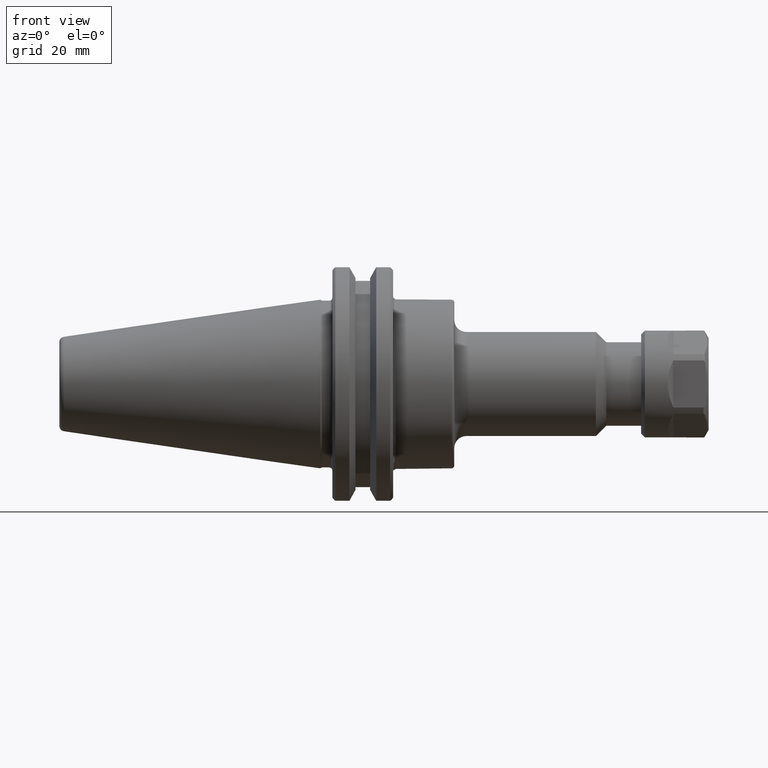
[diagram: clean part render]
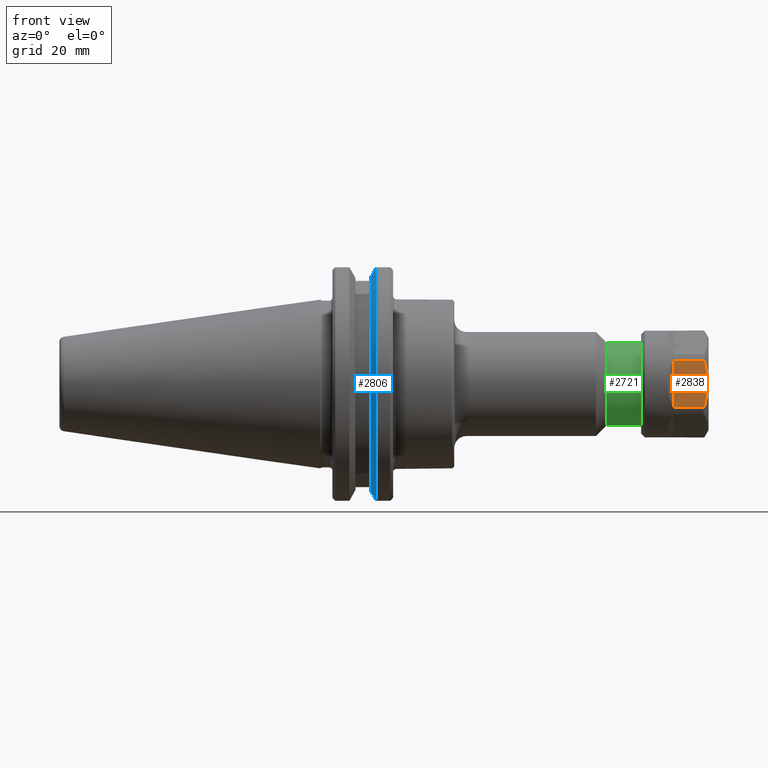
[diagram: same view with three faces highlighted in distinct colors, each labeled with its STEP entity id]
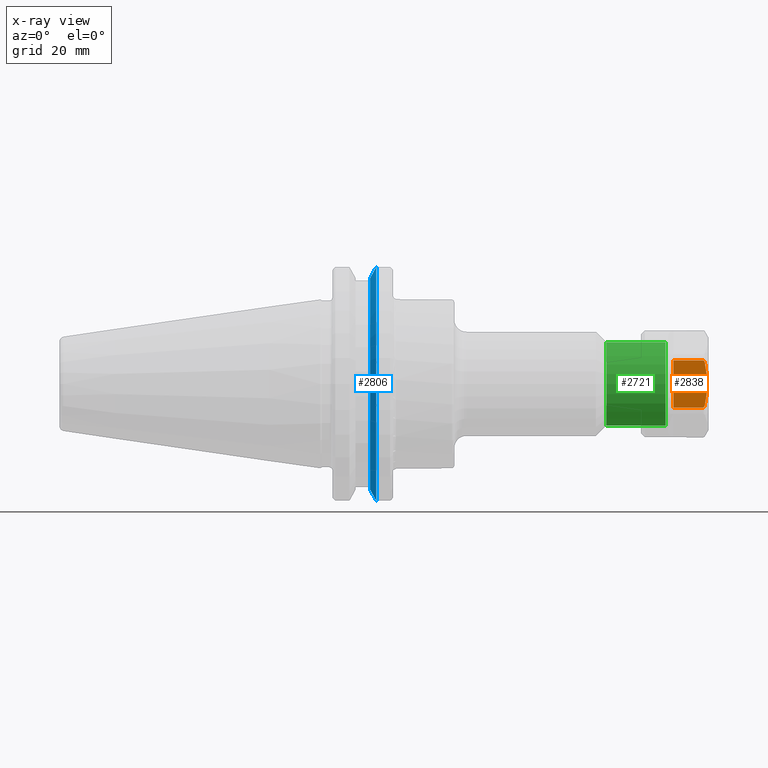
[diagram: x-ray of the same camera — body ghosted, the three highlighted faces saturated]
A machine part, front view with three faces highlighted in distinct colors.
The next image is the same camera in x-ray (body ghosted, the three faces saturated) — at least one of them is partly hidden behind the body in this view.
Their STEP definitions:

[orange] entity #2838 — the highlighted planar face has unit normal (0, 1, -0).
#84=(
BOUNDED_CURVE()
B_SPLINE_CURVE(2,(#6018,#6019,#6020),.UNSPECIFIED.,.F.,.F.)
B_SPLINE_CURVE_WITH_KNOTS((3,3),(0.,1.12149805765919),.UNSPECIFIED.)
CURVE()
GEOMETRIC_REPRESENTATION_ITEM()
RATIONAL_B_SPLINE_CURVE((1.,1.09361329833771,1.))
REPRESENTATION_ITEM('')
);
#193=LINE('',#5826,#333);
#194=LINE('',#5830,#334);
#206=LINE('',#6002,#346);
#333=VECTOR('',#3768,7.82180985847815);
#334=VECTOR('',#3771,7.82180985847815);
#346=VECTOR('',#3837,12.3157900274404);
#495=PLANE('',#3136);
#780=FACE_OUTER_BOUND('',#1016,.T.);
#1016=EDGE_LOOP('',(#2462,#2463,#2464,#2465,#2466,#2467));
#1230=B_SPLINE_CURVE_WITH_KNOTS('',3,(#6005,#6006,#6007,#6008,#6009,#6010,
#6011,#6012,#6013,#6014,#6015,#6016),.UNSPECIFIED.,.F.,.F.,(4,2,2,2,2,4),
(-0.0737918488788988,-0.0724859676393659,-0.0354928490398611,-0.0136392047461638,
-0.00635802033410937,0.),.UNSPECIFIED.);
#1231=B_SPLINE_CURVE_WITH_KNOTS('',3,(#6021,#6022,#6023,#6024,#6025,#6026,
#6027,#6028,#6029,#6030,#6031,#6032),.UNSPECIFIED.,.F.,.F.,(4,2,2,2,2,4),
(0.,0.0063580203341094,0.0136392047461638,0.0354928490398611,0.0724859676393658,
0.0737918488788989),.UNSPECIFIED.);
#1435=VERTEX_POINT('',#5823);
#1436=VERTEX_POINT('',#5825);
#1437=VERTEX_POINT('',#5827);
#1438=VERTEX_POINT('',#5829);
#1464=VERTEX_POINT('',#6004);
#1465=VERTEX_POINT('',#6017);
#1771=EDGE_CURVE('',#1435,#1436,#193,.T.);
#1773=EDGE_CURVE('',#1437,#1438,#194,.T.);
#1811=EDGE_CURVE('',#1436,#1437,#206,.T.);
#1812=EDGE_CURVE('',#1464,#1435,#1230,.T.);
#1813=EDGE_CURVE('',#1465,#1464,#84,.T.);
#1814=EDGE_CURVE('',#1438,#1465,#1231,.T.);
#2462=ORIENTED_EDGE('',*,*,#1771,.F.);
#2463=ORIENTED_EDGE('',*,*,#1812,.F.);
#2464=ORIENTED_EDGE('',*,*,#1813,.F.);
#2465=ORIENTED_EDGE('',*,*,#1814,.F.);
#2466=ORIENTED_EDGE('',*,*,#1773,.F.);
#2467=ORIENTED_EDGE('',*,*,#1811,.F.);
#2838=ADVANCED_FACE('',(#780),#495,.F.);
#3136=AXIS2_PLACEMENT_3D('',#6003,#3838,#3839);
#3768=DIRECTION('',(1.,0.,0.));
#3771=DIRECTION('',(-1.,0.,0.));
#3837=DIRECTION('',(0.,-0.5,-0.866025403784439));
#3838=DIRECTION('center_axis',(2.48288722939764E-16,0.866025403784439,-0.5));
#3839=DIRECTION('ref_axis',(-1.,1.77635683940025E-16,-8.88178419700125E-17));
#5823=CARTESIAN_POINT('',(1.12119014152185,-7.80958989492165,11.6193935157192));
#5825=CARTESIAN_POINT('',(8.943,-7.80958989492165,11.6193935157192));
#5826=CARTESIAN_POINT('',(8.74559507076093,-7.80958989492165,11.6193935157192));
#5827=CARTESIAN_POINT('',(8.943,-13.9674849086418,0.95360648428079));
#5829=CARTESIAN_POINT('',(1.12119014152185,-13.9674849086418,0.953606484280786));
#5830=CARTESIAN_POINT('',(8.74559507076093,-13.9674849086418,0.95360648428079));
#6002=CARTESIAN_POINT('',(8.943,-10.8885374017817,6.2865));
#6003=CARTESIAN_POINT('Origin',(0.,-10.8885374017817,6.2865));
#6004=CARTESIAN_POINT('',(0.688177439629632,-8.10545588123658,11.1069385951903));
#6005=CARTESIAN_POINT('Ctrl Pts',(0.68817743962963,-8.10545588123658,11.1069385951903));
#6006=CARTESIAN_POINT('Ctrl Pts',(0.689175633962202,-8.10332041599802,11.1106373294813));
#6007=CARTESIAN_POINT('Ctrl Pts',(0.690184142195285,-8.10119448053268,11.1143195577208));
#6008=CARTESIAN_POINT('Ctrl Pts',(0.720058085522022,-8.03913508549274,11.221809583017));
#6009=CARTESIAN_POINT('Ctrl Pts',(0.767891610325394,-7.96912114565866,11.3430772840477));
#6010=CARTESIAN_POINT('Ctrl Pts',(0.868941133795054,-7.88505848804876,11.4886780780473));
#6011=CARTESIAN_POINT('Ctrl Pts',(0.923718976070076,-7.85099715990987,11.5476740289572));
#6012=CARTESIAN_POINT('Ctrl Pts',(1.00521872017035,-7.8245901165651,11.593412369708));
#6013=CARTESIAN_POINT('Ctrl Pts',(1.03139506563093,-7.81820557896621,11.6044707132121));
#6014=CARTESIAN_POINT('Ctrl Pts',(1.07487052984685,-7.81155612888104,11.615987898602));
#6015=CARTESIAN_POINT('Ctrl Pts',(1.09999674040815,-7.80958989492165,11.6193935157192));
#6016=CARTESIAN_POINT('Ctrl Pts',(1.12119014152185,-7.80958989492165,11.6193935157192));
#6017=CARTESIAN_POINT('',(0.688177439629632,-13.6716189223269,1.46606140480972));
#6018=CARTESIAN_POINT('Ctrl Pts',(0.688177439629634,-13.6716189223269,1.46606140480972));
#6019=CARTESIAN_POINT('Ctrl Pts',(-0.612736361601571,-10.8885374017817,
6.2865));
#6020=CARTESIAN_POINT('Ctrl Pts',(0.688177439629634,-8.10545588123657,11.1069385951903));
#6021=CARTESIAN_POINT('Ctrl Pts',(1.12119014152185,-13.9674849086418,0.953606484280786));
#6022=CARTESIAN_POINT('Ctrl Pts',(1.09999674040815,-13.9674849086418,0.953606484280786));
#6023=CARTESIAN_POINT('Ctrl Pts',(1.07487052984685,-13.9655186746825,0.957012101398023));
#6024=CARTESIAN_POINT('Ctrl Pts',(1.03139506563093,-13.9588692245973,0.968529286787934));
#6025=CARTESIAN_POINT('Ctrl Pts',(1.00521872017035,-13.9524846869984,0.979587630292033));
#6026=CARTESIAN_POINT('Ctrl Pts',(0.923718976070075,-13.9260776436536,1.02532597104285));
#6027=CARTESIAN_POINT('Ctrl Pts',(0.868941133795054,-13.8920163155147,1.08432192195268));
#6028=CARTESIAN_POINT('Ctrl Pts',(0.767891610325395,-13.8079536579048,1.22992271595231));
#6029=CARTESIAN_POINT('Ctrl Pts',(0.720058085522022,-13.7379397180708,1.351190416983));
#6030=CARTESIAN_POINT('Ctrl Pts',(0.690184142195285,-13.6758803230308,1.45868044227917));
#6031=CARTESIAN_POINT('Ctrl Pts',(0.689175633962204,-13.6737543875655,1.46236267051874));
#6032=CARTESIAN_POINT('Ctrl Pts',(0.688177439629632,-13.6716189223269,1.46606140480972));

[blue] entity #2806 — the highlighted conical surface has half-angle 60 deg.
#57=(
BOUNDED_CURVE()
B_SPLINE_CURVE(2,(#4361,#4362,#4363),.UNSPECIFIED.,.F.,.F.)
B_SPLINE_CURVE_WITH_KNOTS((3,3),(0.,0.0246703220929329),.UNSPECIFIED.)
CURVE()
GEOMETRIC_REPRESENTATION_ITEM()
RATIONAL_B_SPLINE_CURVE((1.,1.00009739248592,1.00018150703382))
REPRESENTATION_ITEM('')
);
#79=(
BOUNDED_CURVE()
B_SPLINE_CURVE(2,(#5691,#5692,#5693),.UNSPECIFIED.,.F.,.F.)
B_SPLINE_CURVE_WITH_KNOTS((3,3),(0.337238883116999,0.36190920520917),
 .UNSPECIFIED.)
CURVE()
GEOMETRIC_REPRESENTATION_ITEM()
RATIONAL_B_SPLINE_CURVE((1.00018150703357,1.00009739248579,1.))
REPRESENTATION_ITEM('')
);
#396=CONICAL_SURFACE('',#3066,1.28590991798633,60.0000000000093);
#748=FACE_OUTER_BOUND('',#974,.T.);
#974=EDGE_LOOP('',(#2322,#2323,#2324,#2325,#2326,#2327));
#1104=CIRCLE('',#2958,1.14031983597204);
#1124=CIRCLE('',#3037,1.25);
#1190=B_SPLINE_CURVE_WITH_KNOTS('',3,(#4301,#4302,#4303,#4304,#4305,#4306,
#4307,#4308,#4309,#4310,#4311,#4312,#4313,#4314,#4315,#4316,#4317,#4318,
#4319,#4320,#4321),.UNSPECIFIED.,.F.,.F.,(4,1,2,2,2,1,2,2,2,2,1,4),(-0.298992862370475,
-0.258089161815496,-0.235846833355605,-0.213742413070091,-0.191774578107331,
-0.148243453984645,-0.0839390099489113,-0.0627638019609409,-0.0417163615476127,
-0.0207954892590791,0.,0.00870150624891346),.UNSPECIFIED.);
#1210=B_SPLINE_CURVE_WITH_KNOTS('',3,(#4977,#4978,#4979,#4980,#4981,#4982,
#4983,#4984,#4985,#4986,#4987,#4988,#4989,#4990,#4991,#4992,#4993,#4994,
#4995,#4996,#4997),.UNSPECIFIED.,.F.,.F.,(4,1,2,2,2,2,1,2,2,2,1,4),(-0.266790668115941,
-0.258089161815539,-0.237293672556656,-0.216372800268282,-0.195325359855078,
-0.174150151867187,-0.109845707831487,-0.0663145837086464,-0.0443467487457588,
-0.0222423284600852,0.,0.0409037005549357),.UNSPECIFIED.);
#1275=VERTEX_POINT('',#4293);
#1276=VERTEX_POINT('',#4300);
#1281=VERTEX_POINT('',#4359);
#1314=VERTEX_POINT('',#4940);
#1317=VERTEX_POINT('',#4970);
#1394=VERTEX_POINT('',#5683);
#1542=EDGE_CURVE('',#1275,#1276,#1190,.T.);
#1549=EDGE_CURVE('',#1281,#1275,#57,.T.);
#1592=EDGE_CURVE('',#1317,#1314,#1210,.T.);
#1593=EDGE_CURVE('',#1276,#1317,#1104,.T.);
#1719=EDGE_CURVE('',#1394,#1281,#1124,.T.);
#1722=EDGE_CURVE('',#1314,#1394,#79,.T.);
#2322=ORIENTED_EDGE('',*,*,#1542,.F.);
#2323=ORIENTED_EDGE('',*,*,#1549,.F.);
#2324=ORIENTED_EDGE('',*,*,#1719,.F.);
#2325=ORIENTED_EDGE('',*,*,#1722,.F.);
#2326=ORIENTED_EDGE('',*,*,#1592,.F.);
#2327=ORIENTED_EDGE('',*,*,#1593,.F.);
#2806=ADVANCED_FACE('',(#748),#396,.T.);
#2958=AXIS2_PLACEMENT_3D('',#4999,#3383,#3384);
#3037=AXIS2_PLACEMENT_3D('',#5685,#3601,#3602);
#3066=AXIS2_PLACEMENT_3D('',#5724,#3659,#3660);
#3383=DIRECTION('center_axis',(-1.,1.62451355720802E-13,0.));
#3384=DIRECTION('ref_axis',(1.62482077846342E-13,1.,0.));
#3601=DIRECTION('center_axis',(1.,1.16523256636576E-36,0.));
#3602=DIRECTION('ref_axis',(1.62451355720802E-13,1.,0.));
#3659=DIRECTION('center_axis',(1.,-1.62451355720802E-13,0.));
#3660=DIRECTION('ref_axis',(1.62482077846342E-13,1.,0.));
#4293=CARTESIAN_POINT('',(0.57260203633517,-0.333205733276611,-1.19655338963449));
#4300=CARTESIAN_POINT('',(0.513849999995934,-0.33314971543577,-1.09056893198432));
#4301=CARTESIAN_POINT('Ctrl Pts',(0.57260203633517,-0.33320573327661,-1.19655338963449));
#4302=CARTESIAN_POINT('Ctrl Pts',(0.569991755826316,-0.333202787555279,
-1.19186104554502));
#4303=CARTESIAN_POINT('Ctrl Pts',(0.565963363830547,-0.333198327842134,
-1.18461637151535));
#4304=CARTESIAN_POINT('Ctrl Pts',(0.561937029401505,-0.333194007937573,
-1.17737048354795));
#4305=CARTESIAN_POINT('Ctrl Pts',(0.559109898355234,-0.333191009292957,
-1.17228147157041));
#4306=CARTESIAN_POINT('Ctrl Pts',(0.557700985534991,-0.333189532056867,
-1.16974472683531));
#4307=CARTESIAN_POINT('Ctrl Pts',(0.554892387431461,-0.333186622042555,
-1.16468660436785));
#4308=CARTESIAN_POINT('Ctrl Pts',(0.553492698923776,-0.333185189046073,
-1.16216522853428));
#4309=CARTESIAN_POINT('Ctrl Pts',(0.549320194174905,-0.333180969510728,
-1.15464707005213));
#4310=CARTESIAN_POINT('Ctrl Pts',(0.542453265557145,-0.333174195711689,
-1.14226788346412));
#4311=CARTESIAN_POINT('Ctrl Pts',(0.535592919839709,-0.333167865320853,
-1.12988481558215));
#4312=CARTESIAN_POINT('Ctrl Pts',(0.530158115260262,-0.333163067656268,
-1.12006700355488));
#4313=CARTESIAN_POINT('Ctrl Pts',(0.528812061942786,-0.333161897149016,
-1.11763475532049));
#4314=CARTESIAN_POINT('Ctrl Pts',(0.52612862242322,-0.333159599647901,-1.11278461344108));
#4315=CARTESIAN_POINT('Ctrl Pts',(0.524791232945066,-0.333158472434753,
-1.1103667217295));
#4316=CARTESIAN_POINT('Ctrl Pts',(0.522125045147074,-0.333156261404245,
-1.10554515500631));
#4317=CARTESIAN_POINT('Ctrl Pts',(0.520796243534478,-0.333155177367144,
-1.10314148193073));
#4318=CARTESIAN_POINT('Ctrl Pts',(0.518147156462394,-0.333153052571792,
-1.09834821630085));
#4319=CARTESIAN_POINT('Ctrl Pts',(0.516274416266603,-0.333151576021415,
-1.09495874351973));
#4320=CARTESIAN_POINT('Ctrl Pts',(0.514402236849804,-0.333150136745665,
-1.09156894052823));
#4321=CARTESIAN_POINT('Ctrl Pts',(0.513849999933392,-0.333149715431635,
-1.09056893202033));
#4359=CARTESIAN_POINT('',(0.577173872225885,-0.339628138321232,-1.20297661143534));
#4361=CARTESIAN_POINT('Ctrl Pts',(0.577173872226384,-0.339628138322061,
-1.20297661143619));
#4362=CARTESIAN_POINT('Ctrl Pts',(0.574878397144639,-0.336406732121413,
-1.19975479555979));
#4363=CARTESIAN_POINT('Ctrl Pts',(0.57260203633517,-0.333205733276611,-1.19655338963449));
#4940=CARTESIAN_POINT('',(0.572602036335169,-0.333205733276628,1.19655338963449));
#4970=CARTESIAN_POINT('',(0.513849999980839,-0.333149715439598,1.09056893196948));
#4977=CARTESIAN_POINT('Ctrl Pts',(0.513849999923587,-0.333149715431645,
1.09056893200257));
#4978=CARTESIAN_POINT('Ctrl Pts',(0.514402236843266,-0.333150136745678,
1.09156894051639));
#4979=CARTESIAN_POINT('Ctrl Pts',(0.51627441626332,-0.33315157602143,1.09495874351378));
#4980=CARTESIAN_POINT('Ctrl Pts',(0.518147156462367,-0.33315305257181,1.09834821630079));
#4981=CARTESIAN_POINT('Ctrl Pts',(0.520796243534429,-0.333155177367162,
1.10314148193064));
#4982=CARTESIAN_POINT('Ctrl Pts',(0.522125045147014,-0.333156261404263,
1.10554515500619));
#4983=CARTESIAN_POINT('Ctrl Pts',(0.524791232944988,-0.333158472434771,
1.11036672172935));
#4984=CARTESIAN_POINT('Ctrl Pts',(0.526128622423135,-0.333159599647919,
1.11278461344092));
#4985=CARTESIAN_POINT('Ctrl Pts',(0.528812061942688,-0.333161897149034,
1.11763475532031));
#4986=CARTESIAN_POINT('Ctrl Pts',(0.530158115260158,-0.333163067656287,
1.12006700355469));
#4987=CARTESIAN_POINT('Ctrl Pts',(0.535592919839598,-0.333167865320872,
1.12988481558195));
#4988=CARTESIAN_POINT('Ctrl Pts',(0.542453265557043,-0.333174195711705,
1.14226788346393));
#4989=CARTESIAN_POINT('Ctrl Pts',(0.54932019417481,-0.333180969510743,1.15464707005195));
#4990=CARTESIAN_POINT('Ctrl Pts',(0.553492698923699,-0.333185189046088,
1.16216522853414));
#4991=CARTESIAN_POINT('Ctrl Pts',(0.554892387431392,-0.333186622042571,
1.16468660436773));
#4992=CARTESIAN_POINT('Ctrl Pts',(0.557700985534941,-0.333189532056883,
1.16974472683521));
#4993=CARTESIAN_POINT('Ctrl Pts',(0.559109898355194,-0.333191009292973,
1.17228147157034));
#4994=CARTESIAN_POINT('Ctrl Pts',(0.561937029401487,-0.333194007937588,
1.17737048354792));
#4995=CARTESIAN_POINT('Ctrl Pts',(0.56596336383054,-0.33319832784215,1.18461637151533));
#4996=CARTESIAN_POINT('Ctrl Pts',(0.569991755826318,-0.333202787555296,
1.19186104554501));
#4997=CARTESIAN_POINT('Ctrl Pts',(0.57260203633517,-0.333205733276628,1.19655338963449));
#4999=CARTESIAN_POINT('Origin',(0.513849999999605,-3.01729025547967E-13,
0.));
#5683=CARTESIAN_POINT('',(0.577173872225885,-0.339628138321233,1.20297661143534));
#5685=CARTESIAN_POINT('Origin',(0.577173872225885,-9.35479149211715E-37,
0.));
#5691=CARTESIAN_POINT('Ctrl Pts',(0.572602036335169,-0.333205733276628,
1.19655338963449));
#5692=CARTESIAN_POINT('Ctrl Pts',(0.574878397144566,-0.33640673212133,1.19975479555968));
#5693=CARTESIAN_POINT('Ctrl Pts',(0.577173872226236,-0.339628138321872,
1.20297661143598));
#5724=CARTESIAN_POINT('Origin',(0.597906473041862,-3.15384113550791E-13,
0.));

[green] entity #2721 — the highlighted cylindrical surface (bore or boss wall) has radius 11 mm, axis along (1, 0, 0).
#520=CYLINDRICAL_SURFACE('',#2930,0.433070866141732);
#580=FACE_BOUND('',#860,.T.);
#663=FACE_OUTER_BOUND('',#859,.T.);
#859=EDGE_LOOP('',(#1921));
#860=EDGE_LOOP('',(#1922));
#1090=CIRCLE('',#2928,0.433070866141732);
#1092=CIRCLE('',#2931,0.433070866141732);
#1264=VERTEX_POINT('',#4179);
#1266=VERTEX_POINT('',#4184);
#1531=EDGE_CURVE('',#1264,#1264,#1090,.T.);
#1533=EDGE_CURVE('',#1266,#1266,#1092,.T.);
#1921=ORIENTED_EDGE('',*,*,#1533,.T.);
#1922=ORIENTED_EDGE('',*,*,#1531,.F.);
#2721=ADVANCED_FACE('',(#663,#580),#520,.T.);
#2928=AXIS2_PLACEMENT_3D('',#4180,#3301,#3302);
#2930=AXIS2_PLACEMENT_3D('',#4183,#3305,#3306);
#2931=AXIS2_PLACEMENT_3D('',#4185,#3307,#3308);
#3301=DIRECTION('center_axis',(1.,0.,0.));
#3302=DIRECTION('ref_axis',(0.,-1.,0.));
#3305=DIRECTION('center_axis',(1.,0.,0.));
#3306=DIRECTION('ref_axis',(0.,1.,0.));
#3307=DIRECTION('center_axis',(1.,0.,0.));
#3308=DIRECTION('ref_axis',(0.,1.,0.));
#4179=CARTESIAN_POINT('',(3.556,0.433070866141732,5.30358850024444E-17));
#4180=CARTESIAN_POINT('Origin',(3.556,0.,0.));
#4183=CARTESIAN_POINT('Origin',(3.271,0.,0.));
#4184=CARTESIAN_POINT('',(2.946,0.433070866141732,0.));
#4185=CARTESIAN_POINT('Origin',(2.946,0.,0.));